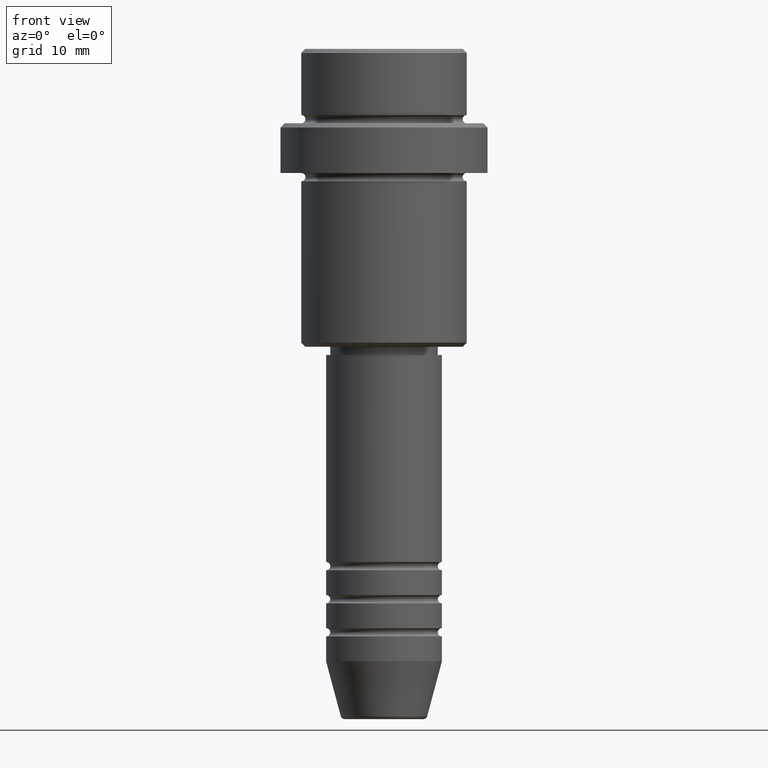
[diagram: clean part render]
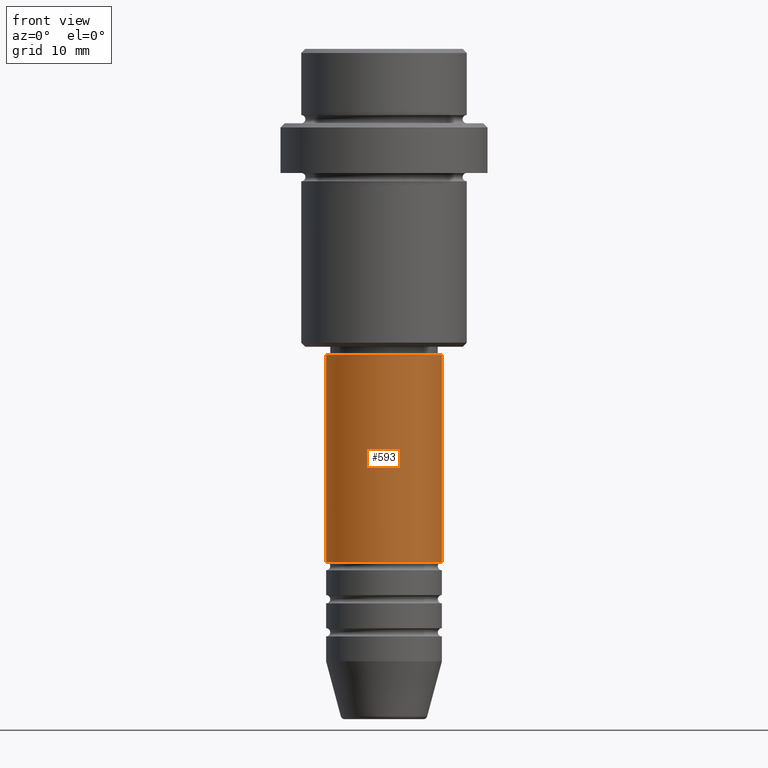
[diagram: same view with one face highlighted and labeled with its STEP entity id]
A machine part, front view. The second image highlights one B-rep face of the part: STEP entity #593.
In plain terms, the highlighted cylindrical surface (partial cylindrical patch) has radius 7 mm, axis along (-0, -0, 1).
Its self-contained STEP definition (entity closure, byte-faithful):
#12 = VECTOR ( 'NONE', #21, 1000.000000000000000 ) ;
#21 = DIRECTION ( 'NONE',  ( -0.000000000000000000, -0.000000000000000000, 1.000000000000000000 ) ) ;
#96 = FACE_OUTER_BOUND ( 'NONE', #1272, .T. ) ;
#259 = CIRCLE ( 'NONE', #687, 7.000000000000000000 ) ;
#301 = ORIENTED_EDGE ( 'NONE', *, *, #1153, .T. ) ;
#331 = CARTESIAN_POINT ( 'NONE',  ( 7.000000000000000000, 0.000000000000000000, -61.99999999999987921 ) ) ;
#345 = EDGE_CURVE ( 'NONE', #1390, #1150, #259, .T. ) ;
#349 = CARTESIAN_POINT ( 'NONE',  ( -7.000000000000000000, 8.572527594031473190E-16, 0.000000000000000000 ) ) ;
#534 = CARTESIAN_POINT ( 'NONE',  ( 0.000000000000000000, 0.000000000000000000, 0.000000000000000000 ) ) ;
#541 = VECTOR ( 'NONE', #589, 1000.000000000000000 ) ;
#545 = CYLINDRICAL_SURFACE ( 'NONE', #1109, 7.000000000000000000 ) ;
#549 = CARTESIAN_POINT ( 'NONE',  ( -7.000000000000000000, 8.572527594031473190E-16, -37.00000000000000000 ) ) ;
#561 = DIRECTION ( 'NONE',  ( -0.000000000000000000, -0.000000000000000000, 1.000000000000000000 ) ) ;
#580 = CIRCLE ( 'NONE', #716, 7.000000000000000000 ) ;
#589 = DIRECTION ( 'NONE',  ( -0.000000000000000000, -0.000000000000000000, 1.000000000000000000 ) ) ;
#593 = ADVANCED_FACE ( 'NONE', ( #96 ), #545, .T. ) ;
#653 = ORIENTED_EDGE ( 'NONE', *, *, #345, .F. ) ;
#658 = CARTESIAN_POINT ( 'NONE',  ( 0.000000000000000000, 0.000000000000000000, -37.00000000000000000 ) ) ;
#687 = AXIS2_PLACEMENT_3D ( 'NONE', #658, #561, #785 ) ;
#716 = AXIS2_PLACEMENT_3D ( 'NONE', #761, #878, #1200 ) ;
#723 = DIRECTION ( 'NONE',  ( -0.000000000000000000, -0.000000000000000000, 1.000000000000000000 ) ) ;
#744 = VERTEX_POINT ( 'NONE', #1192 ) ;
#761 = CARTESIAN_POINT ( 'NONE',  ( 0.000000000000000000, 0.000000000000000000, -61.99999999999987921 ) ) ;
#785 = DIRECTION ( 'NONE',  ( 1.000000000000000000, 0.000000000000000000, 0.000000000000000000 ) ) ;
#809 = CARTESIAN_POINT ( 'NONE',  ( 7.000000000000000000, 0.000000000000000000, -37.00000000000000000 ) ) ;
#878 = DIRECTION ( 'NONE',  ( -0.000000000000000000, -0.000000000000000000, 1.000000000000000000 ) ) ;
#994 = EDGE_CURVE ( 'NONE', #744, #1408, #580, .T. ) ;
#995 = LINE ( 'NONE', #349, #12 ) ;
#1028 = ORIENTED_EDGE ( 'NONE', *, *, #1366, .F. ) ;
#1093 = ORIENTED_EDGE ( 'NONE', *, *, #994, .T. ) ;
#1109 = AXIS2_PLACEMENT_3D ( 'NONE', #534, #723, #1301 ) ;
#1132 = LINE ( 'NONE', #1246, #541 ) ;
#1150 = VERTEX_POINT ( 'NONE', #809 ) ;
#1153 = EDGE_CURVE ( 'NONE', #1408, #1150, #1132, .T. ) ;
#1192 = CARTESIAN_POINT ( 'NONE',  ( -7.000000000000000000, 8.572527594031473190E-16, -61.99999999999987921 ) ) ;
#1200 = DIRECTION ( 'NONE',  ( 1.000000000000000000, 0.000000000000000000, 0.000000000000000000 ) ) ;
#1246 = CARTESIAN_POINT ( 'NONE',  ( 7.000000000000000000, 0.000000000000000000, 0.000000000000000000 ) ) ;
#1272 = EDGE_LOOP ( 'NONE', ( #1028, #1093, #301, #653 ) ) ;
#1301 = DIRECTION ( 'NONE',  ( 1.000000000000000000, 0.000000000000000000, 0.000000000000000000 ) ) ;
#1366 = EDGE_CURVE ( 'NONE', #744, #1390, #995, .T. ) ;
#1390 = VERTEX_POINT ( 'NONE', #549 ) ;
#1408 = VERTEX_POINT ( 'NONE', #331 ) ;